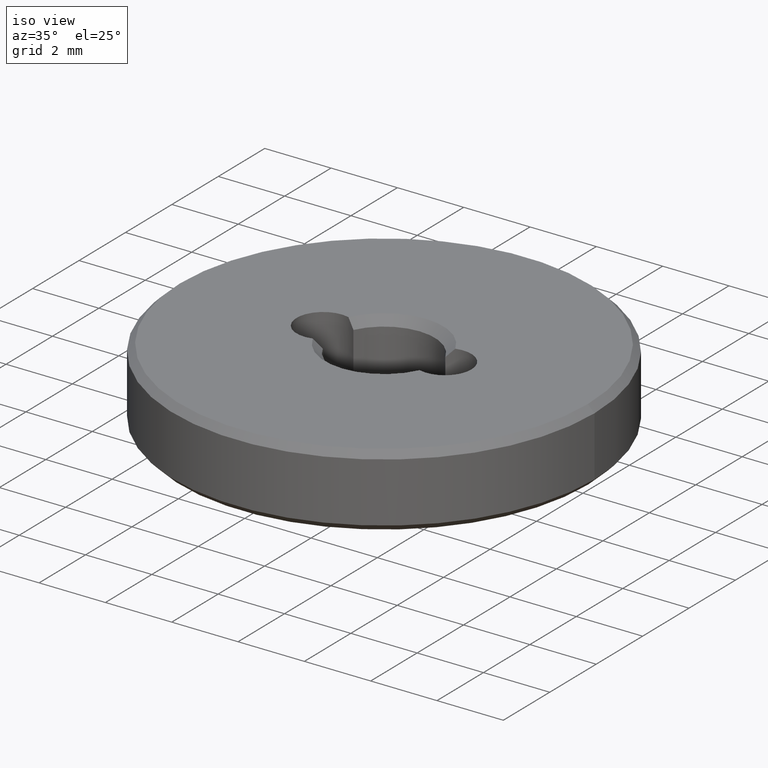
[diagram: clean part render]
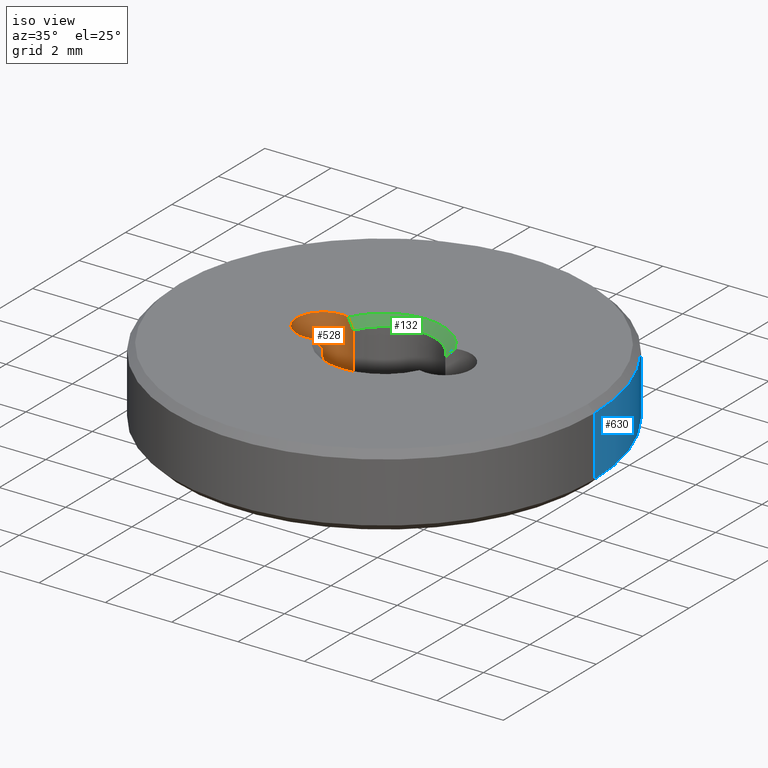
[diagram: same view with three faces highlighted in distinct colors, each labeled with its STEP entity id]
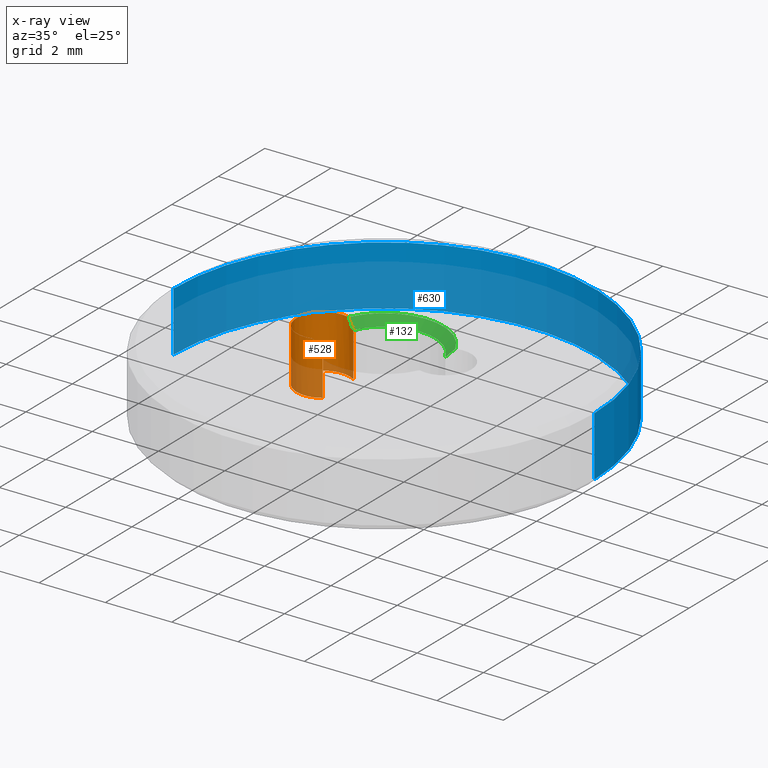
[diagram: x-ray of the same camera — body ghosted, the three highlighted faces saturated]
A machine part, iso view with three faces highlighted in distinct colors.
The next image is the same camera in x-ray (body ghosted, the three faces saturated) — at least one of them is partly hidden behind the body in this view.
Their STEP definitions:

[orange] entity #528 — the highlighted cylindrical surface (edge-blend (fillet) strip) has radius 0.8 mm, axis along (-0, -0, 1).
#10 = ORIENTED_EDGE ( 'NONE', *, *, #292, .F. ) ;
#31 = CARTESIAN_POINT ( 'NONE',  ( -1.834999999999999742, -2.247226876435391980E-16, 2.200000000000000178 ) ) ;
#32 = EDGE_CURVE ( 'NONE', #658, #445, #453, .T. ) ;
#35 = CARTESIAN_POINT ( 'NONE',  ( -1.385136239782015943, 0.6615304960790072686, 1.949999999999998179 ) ) ;
#40 = CARTESIAN_POINT ( 'NONE',  ( -1.530260531068683427, 0.7444846128819502251, 2.116696400286292246 ) ) ;
#41 = VERTEX_POINT ( 'NONE', #191 ) ;
#64 = CARTESIAN_POINT ( 'NONE',  ( -1.385136239782015943, 0.6615304960790072686, 1.949999999999998179 ) ) ;
#68 = EDGE_CURVE ( 'NONE', #41, #222, #520, .T. ) ;
#75 = DIRECTION ( 'NONE',  ( 1.000000000000000000, 0.000000000000000000, 0.000000000000000000 ) ) ;
#79 = ORIENTED_EDGE ( 'NONE', *, *, #258, .T. ) ;
#84 = DIRECTION ( 'NONE',  ( 1.000000000000000000, 0.000000000000000000, 0.000000000000000000 ) ) ;
#85 = ORIENTED_EDGE ( 'NONE', *, *, #68, .T. ) ;
#91 = CARTESIAN_POINT ( 'NONE',  ( -1.611294277929156360, 0.7680857698934172584, 2.200000000000000178 ) ) ;
#95 = EDGE_LOOP ( 'NONE', ( #200, #10, #485, #85, #79, #264 ) ) ;
#102 = CARTESIAN_POINT ( 'NONE',  ( -1.530260531068683649, -0.7444846128819508912, 2.116696400286292690 ) ) ;
#144 = CARTESIAN_POINT ( 'NONE',  ( -1.385136239782015943, -0.6615304960790077127, 1.400000000000000133 ) ) ;
#155 = EDGE_CURVE ( 'NONE', #377, #41, #607, .T. ) ;
#166 = CARTESIAN_POINT ( 'NONE',  ( -1.611294277929156360, -0.7680857698934177025, 2.200000000000000178 ) ) ;
#181 = CARTESIAN_POINT ( 'NONE',  ( -1.385136239782015721, -0.6615304960790076017, 1.949999999999997957 ) ) ;
#191 = CARTESIAN_POINT ( 'NONE',  ( -1.611294277929156360, 0.7680857698934172584, 2.200000000000000178 ) ) ;
#192 = FACE_OUTER_BOUND ( 'NONE', #95, .T. ) ;
#200 = ORIENTED_EDGE ( 'NONE', *, *, #451, .T. ) ;
#222 = VERTEX_POINT ( 'NONE', #166 ) ;
#226 = CARTESIAN_POINT ( 'NONE',  ( -1.385136239782015943, 0.6615304960790072686, 1.400000000000000133 ) ) ;
#232 = AXIS2_PLACEMENT_3D ( 'NONE', #446, #358, #306 ) ;
#234 = DIRECTION ( 'NONE',  ( 0.000000000000000000, 0.000000000000000000, -1.000000000000000000 ) ) ;
#238 = DIRECTION ( 'NONE',  ( -0.000000000000000000, -0.000000000000000000, -1.000000000000000000 ) ) ;
#239 = DIRECTION ( 'NONE',  ( 0.000000000000000000, 0.000000000000000000, 1.000000000000000000 ) ) ;
#246 = CARTESIAN_POINT ( 'NONE',  ( -1.834999999999999742, -2.247226876435391980E-16, 0.6000000000000003109 ) ) ;
#253 = VECTOR ( 'NONE', #234, 1000.000000000000000 ) ;
#258 = EDGE_CURVE ( 'NONE', #222, #445, #295, .T. ) ;
#260 = CARTESIAN_POINT ( 'NONE',  ( -1.454874495876763874, 0.7089549372858433562, 2.033367882693068118 ) ) ;
#264 = ORIENTED_EDGE ( 'NONE', *, *, #32, .F. ) ;
#292 = EDGE_CURVE ( 'NONE', #377, #641, #591, .T. ) ;
#295 = B_SPLINE_CURVE_WITH_KNOTS ( 'NONE', 3,
 ( #587, #102, #538, #656 ),
 .UNSPECIFIED., .F., .F.,
 ( 4, 4 ),
 ( 2.829452205434789979E-07, 0.0003538384353437005244 ),
 .UNSPECIFIED. ) ;
#300 = CYLINDRICAL_SURFACE ( 'NONE', #232, 0.8000000000000008216 ) ;
#306 = DIRECTION ( 'NONE',  ( 1.000000000000000000, 0.000000000000000000, 0.000000000000000000 ) ) ;
#311 = AXIS2_PLACEMENT_3D ( 'NONE', #31, #239, #84 ) ;
#358 = DIRECTION ( 'NONE',  ( -0.000000000000000000, -0.000000000000000000, 1.000000000000000000 ) ) ;
#377 = VERTEX_POINT ( 'NONE', #64 ) ;
#445 = VERTEX_POINT ( 'NONE', #181 ) ;
#446 = CARTESIAN_POINT ( 'NONE',  ( -1.834999999999999742, -2.247226876435391980E-16, -1.662741699796954853 ) ) ;
#449 = VECTOR ( 'NONE', #677, 1000.000000000000000 ) ;
#451 = EDGE_CURVE ( 'NONE', #658, #641, #499, .T. ) ;
#453 = LINE ( 'NONE', #144, #449 ) ;
#485 = ORIENTED_EDGE ( 'NONE', *, *, #155, .T. ) ;
#499 = CIRCLE ( 'NONE', #546, 0.8000000000000008216 ) ;
#520 = CIRCLE ( 'NONE', #311, 0.8000000000000008216 ) ;
#528 = ADVANCED_FACE ( 'NONE', ( #192 ), #300, .F. ) ;
#538 = CARTESIAN_POINT ( 'NONE',  ( -1.454874495876763874, -0.7089549372858438003, 2.033367882693068118 ) ) ;
#546 = AXIS2_PLACEMENT_3D ( 'NONE', #246, #238, #75 ) ;
#584 = CARTESIAN_POINT ( 'NONE',  ( -1.385136239782015943, 0.6615304960790072686, 0.6000000000000003109 ) ) ;
#587 = CARTESIAN_POINT ( 'NONE',  ( -1.611294277929156360, -0.7680857698934177025, 2.200000000000000178 ) ) ;
#591 = LINE ( 'NONE', #226, #253 ) ;
#607 = B_SPLINE_CURVE_WITH_KNOTS ( 'NONE', 3,
 ( #35, #260, #40, #91 ),
 .UNSPECIFIED., .F., .F.,
 ( 4, 4 ),
 ( 2.827272945876541696E-07, 0.0003538382174177444350 ),
 .UNSPECIFIED. ) ;
#635 = CARTESIAN_POINT ( 'NONE',  ( -1.385136239782015943, -0.6615304960790077127, 0.6000000000000003109 ) ) ;
#641 = VERTEX_POINT ( 'NONE', #584 ) ;
#656 = CARTESIAN_POINT ( 'NONE',  ( -1.385136239782015721, -0.6615304960790076017, 1.949999999999997957 ) ) ;
#658 = VERTEX_POINT ( 'NONE', #635 ) ;
#677 = DIRECTION ( 'NONE',  ( -0.000000000000000000, -0.000000000000000000, 1.000000000000000000 ) ) ;

[blue] entity #630 — the highlighted cylindrical surface (partial cylindrical patch) has radius 6.35 mm, axis along (-0, -0, -1).
#14 = VECTOR ( 'NONE', #645, 1000.000000000000000 ) ;
#47 = CARTESIAN_POINT ( 'NONE',  ( 0.000000000000000000, 0.000000000000000000, 2.200000000000000178 ) ) ;
#93 = DIRECTION ( 'NONE',  ( -1.000000000000000000, 0.000000000000000000, 0.000000000000000000 ) ) ;
#96 = EDGE_CURVE ( 'NONE', #386, #698, #413, .T. ) ;
#100 = AXIS2_PLACEMENT_3D ( 'NONE', #376, #223, #275 ) ;
#124 = EDGE_LOOP ( 'NONE', ( #374, #244, #392, #701 ) ) ;
#131 = CARTESIAN_POINT ( 'NONE',  ( 0.000000000000000000, 0.000000000000000000, 2.000000000000000444 ) ) ;
#147 = DIRECTION ( 'NONE',  ( -0.000000000000000000, -0.000000000000000000, -1.000000000000000000 ) ) ;
#148 = VERTEX_POINT ( 'NONE', #212 ) ;
#174 = CARTESIAN_POINT ( 'NONE',  ( -6.349999999999999645, 0.000000000000000000, 2.000000000000000444 ) ) ;
#176 = VERTEX_POINT ( 'NONE', #476 ) ;
#212 = CARTESIAN_POINT ( 'NONE',  ( 6.349999999999999645, 7.776507174585692163E-16, 0.1999999999999987899 ) ) ;
#223 = DIRECTION ( 'NONE',  ( -0.000000000000000000, -0.000000000000000000, 1.000000000000000000 ) ) ;
#231 = VECTOR ( 'NONE', #147, 1000.000000000000000 ) ;
#237 = EDGE_CURVE ( 'NONE', #176, #148, #269, .T. ) ;
#244 = ORIENTED_EDGE ( 'NONE', *, *, #237, .T. ) ;
#248 = FACE_OUTER_BOUND ( 'NONE', #124, .T. ) ;
#259 = EDGE_CURVE ( 'NONE', #148, #698, #409, .T. ) ;
#267 = CYLINDRICAL_SURFACE ( 'NONE', #293, 6.349999999999999645 ) ;
#269 = LINE ( 'NONE', #426, #14 ) ;
#275 = DIRECTION ( 'NONE',  ( 1.000000000000000000, 0.000000000000000000, 0.000000000000000000 ) ) ;
#293 = AXIS2_PLACEMENT_3D ( 'NONE', #47, #320, #93 ) ;
#320 = DIRECTION ( 'NONE',  ( -0.000000000000000000, -0.000000000000000000, -1.000000000000000000 ) ) ;
#348 = DIRECTION ( 'NONE',  ( 1.000000000000000000, 0.000000000000000000, 0.000000000000000000 ) ) ;
#374 = ORIENTED_EDGE ( 'NONE', *, *, #578, .T. ) ;
#376 = CARTESIAN_POINT ( 'NONE',  ( 0.000000000000000000, 0.000000000000000000, 0.1999999999999987899 ) ) ;
#386 = VERTEX_POINT ( 'NONE', #174 ) ;
#392 = ORIENTED_EDGE ( 'NONE', *, *, #259, .T. ) ;
#409 = CIRCLE ( 'NONE', #100, 6.349999999999999645 ) ;
#413 = LINE ( 'NONE', #628, #231 ) ;
#426 = CARTESIAN_POINT ( 'NONE',  ( 6.349999999999999645, 7.776507174585692163E-16, 2.200000000000000178 ) ) ;
#476 = CARTESIAN_POINT ( 'NONE',  ( 6.349999999999999645, 7.776507174585692163E-16, 2.000000000000000444 ) ) ;
#487 = AXIS2_PLACEMENT_3D ( 'NONE', #131, #511, #348 ) ;
#511 = DIRECTION ( 'NONE',  ( 0.000000000000000000, 0.000000000000000000, -1.000000000000000000 ) ) ;
#578 = EDGE_CURVE ( 'NONE', #386, #176, #624, .T. ) ;
#624 = CIRCLE ( 'NONE', #487, 6.349999999999999645 ) ;
#628 = CARTESIAN_POINT ( 'NONE',  ( -6.349999999999999645, 0.000000000000000000, 2.200000000000000178 ) ) ;
#630 = ADVANCED_FACE ( 'NONE', ( #248 ), #267, .T. ) ;
#645 = DIRECTION ( 'NONE',  ( -0.000000000000000000, -0.000000000000000000, -1.000000000000000000 ) ) ;
#698 = VERTEX_POINT ( 'NONE', #699 ) ;
#699 = CARTESIAN_POINT ( 'NONE',  ( -6.349999999999999645, 0.000000000000000000, 0.1999999999999987899 ) ) ;
#701 = ORIENTED_EDGE ( 'NONE', *, *, #96, .F. ) ;

[green] entity #132 — the highlighted conical surface has half-angle 45 deg.
#7 = VERTEX_POINT ( 'NONE', #27 ) ;
#16 = DIRECTION ( 'NONE',  ( -0.000000000000000000, -0.000000000000000000, -1.000000000000000000 ) ) ;
#27 = CARTESIAN_POINT ( 'NONE',  ( 1.385136239782015943, 0.6615304960790076017, 1.949999999999997957 ) ) ;
#35 = CARTESIAN_POINT ( 'NONE',  ( -1.385136239782015943, 0.6615304960790072686, 1.949999999999998179 ) ) ;
#40 = CARTESIAN_POINT ( 'NONE',  ( -1.530260531068683427, 0.7444846128819502251, 2.116696400286292246 ) ) ;
#41 = VERTEX_POINT ( 'NONE', #191 ) ;
#46 = ORIENTED_EDGE ( 'NONE', *, *, #655, .F. ) ;
#48 = DIRECTION ( 'NONE',  ( 1.000000000000000000, 0.000000000000000000, 0.000000000000000000 ) ) ;
#64 = CARTESIAN_POINT ( 'NONE',  ( -1.385136239782015943, 0.6615304960790072686, 1.949999999999998179 ) ) ;
#69 = VERTEX_POINT ( 'NONE', #136 ) ;
#71 = AXIS2_PLACEMENT_3D ( 'NONE', #594, #16, #179 ) ;
#91 = CARTESIAN_POINT ( 'NONE',  ( -1.611294277929156360, 0.7680857698934172584, 2.200000000000000178 ) ) ;
#123 = DIRECTION ( 'NONE',  ( 0.000000000000000000, 0.000000000000000000, 1.000000000000000000 ) ) ;
#132 = ADVANCED_FACE ( 'NONE', ( #263 ), #367, .F. ) ;
#136 = CARTESIAN_POINT ( 'NONE',  ( 1.611294277929156360, 0.7680857698934177025, 2.200000000000000178 ) ) ;
#150 = DIRECTION ( 'NONE',  ( 0.000000000000000000, 0.000000000000000000, 1.000000000000000000 ) ) ;
#155 = EDGE_CURVE ( 'NONE', #377, #41, #607, .T. ) ;
#161 = CARTESIAN_POINT ( 'NONE',  ( 1.530260531068682983, 0.7444846128819506692, 2.116696400286292246 ) ) ;
#179 = DIRECTION ( 'NONE',  ( 1.000000000000000000, 0.000000000000000000, 0.000000000000000000 ) ) ;
#191 = CARTESIAN_POINT ( 'NONE',  ( -1.611294277929156360, 0.7680857698934172584, 2.200000000000000178 ) ) ;
#220 = AXIS2_PLACEMENT_3D ( 'NONE', #696, #150, #48 ) ;
#260 = CARTESIAN_POINT ( 'NONE',  ( -1.454874495876763874, 0.7089549372858433562, 2.033367882693068118 ) ) ;
#262 = CARTESIAN_POINT ( 'NONE',  ( 1.611294277929156360, 0.7680857698934177025, 2.200000000000000178 ) ) ;
#263 = FACE_OUTER_BOUND ( 'NONE', #679, .T. ) ;
#305 = ORIENTED_EDGE ( 'NONE', *, *, #155, .F. ) ;
#307 = B_SPLINE_CURVE_WITH_KNOTS ( 'NONE', 3,
 ( #262, #161, #467, #417 ),
 .UNSPECIFIED., .F., .F.,
 ( 4, 4 ),
 ( 2.829452205434789979E-07, 0.0003538384353437006328 ),
 .UNSPECIFIED. ) ;
#352 = EDGE_CURVE ( 'NONE', #7, #377, #356, .T. ) ;
#356 = CIRCLE ( 'NONE', #462, 1.534999999999999920 ) ;
#361 = EDGE_CURVE ( 'NONE', #41, #69, #601, .T. ) ;
#367 = CONICAL_SURFACE ( 'NONE', #220, 1.534999999999999920, 0.7853981633974482790 ) ;
#377 = VERTEX_POINT ( 'NONE', #64 ) ;
#382 = DIRECTION ( 'NONE',  ( 1.000000000000000000, 0.000000000000000000, 0.000000000000000000 ) ) ;
#416 = ORIENTED_EDGE ( 'NONE', *, *, #361, .F. ) ;
#417 = CARTESIAN_POINT ( 'NONE',  ( 1.385136239782015943, 0.6615304960790076017, 1.949999999999997957 ) ) ;
#462 = AXIS2_PLACEMENT_3D ( 'NONE', #660, #123, #382 ) ;
#467 = CARTESIAN_POINT ( 'NONE',  ( 1.454874495876763429, 0.7089549372858433562, 2.033367882693067674 ) ) ;
#594 = CARTESIAN_POINT ( 'NONE',  ( 0.000000000000000000, 0.000000000000000000, 2.200000000000000178 ) ) ;
#601 = CIRCLE ( 'NONE', #71, 1.785000000000001918 ) ;
#607 = B_SPLINE_CURVE_WITH_KNOTS ( 'NONE', 3,
 ( #35, #260, #40, #91 ),
 .UNSPECIFIED., .F., .F.,
 ( 4, 4 ),
 ( 2.827272945876541696E-07, 0.0003538382174177444350 ),
 .UNSPECIFIED. ) ;
#621 = ORIENTED_EDGE ( 'NONE', *, *, #352, .F. ) ;
#655 = EDGE_CURVE ( 'NONE', #69, #7, #307, .T. ) ;
#660 = CARTESIAN_POINT ( 'NONE',  ( 0.000000000000000000, 0.000000000000000000, 1.949999999999998179 ) ) ;
#679 = EDGE_LOOP ( 'NONE', ( #46, #416, #305, #621 ) ) ;
#696 = CARTESIAN_POINT ( 'NONE',  ( 0.000000000000000000, 0.000000000000000000, 1.949999999999998179 ) ) ;